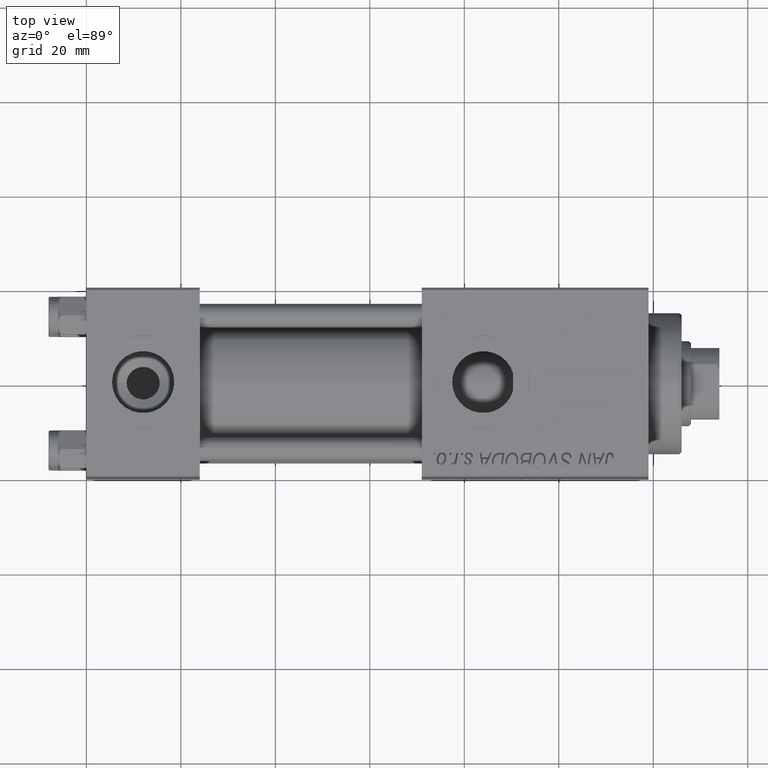
[diagram: clean part render]
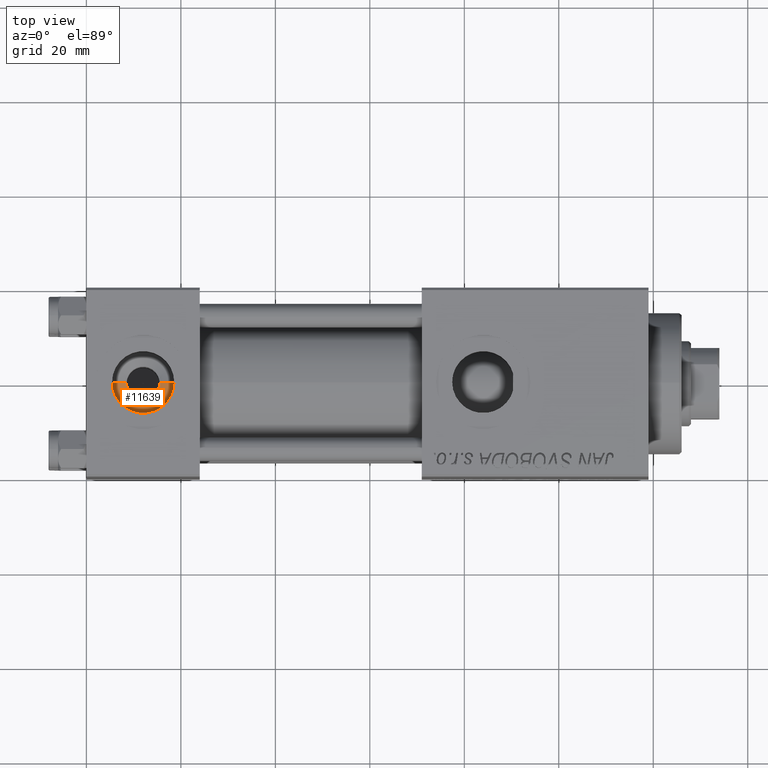
[diagram: same view with one face highlighted and labeled with its STEP entity id]
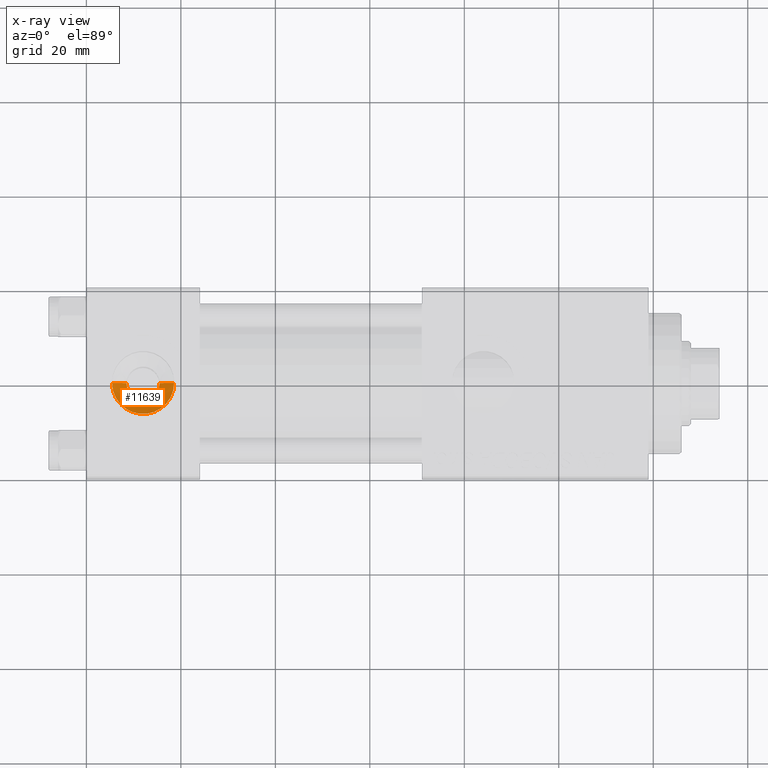
[diagram: x-ray of the same camera — body ghosted, the highlighted face saturated]
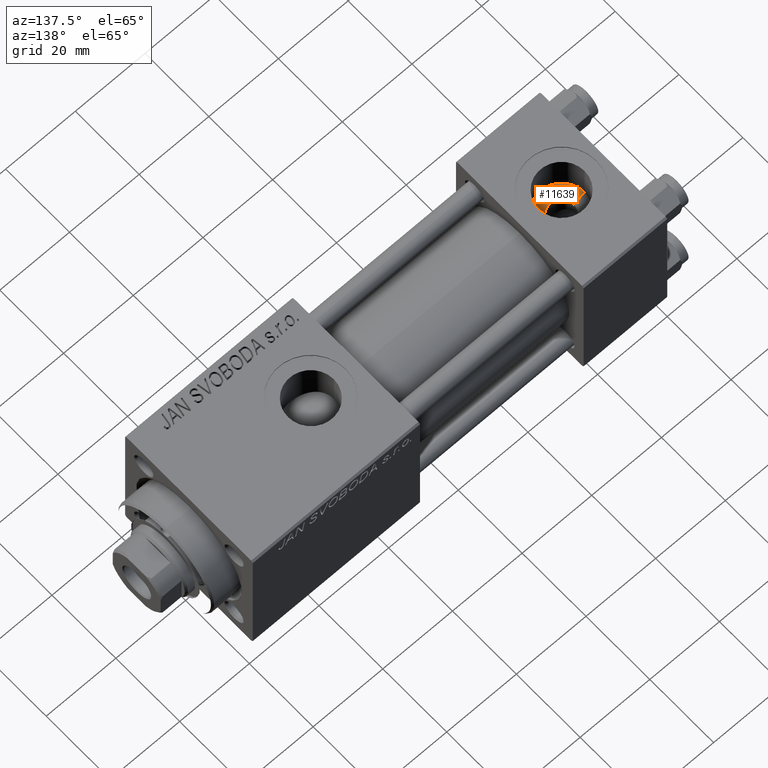
[diagram: same view with one face highlighted and labeled with its STEP entity id]
A machine part, top view. The second image highlights one B-rep face of the part: STEP entity #11639.
The next image is the same camera in x-ray: the body ghosted, the highlighted face saturated — about 0% of this face is hidden behind the body in this view.
A second angle (auxiliary view) of the same face is appended — the face is thin or edge-on in the first view.
In plain terms, the highlighted conical surface has half-angle 60.452 deg.
Its self-contained STEP definition (entity closure, byte-faithful):
#1520 = FACE_OUTER_BOUND ( 'NONE', #33400, .T. ) ;
#3459 = VECTOR ( 'NONE', #46265, 1000.000000000000000 ) ;
#6336 = CARTESIAN_POINT ( 'NONE',  ( 8.500000000000000000, 4.286263797015751879E-16, 7.419999999999996376 ) ) ;
#6413 = CIRCLE ( 'NONE', #18149, 6.579999999999999183 ) ;
#6775 = EDGE_CURVE ( 'NONE', #44434, #41379, #15894, .T. ) ;
#7439 = ORIENTED_EDGE ( 'NONE', *, *, #36011, .F. ) ;
#10530 = CARTESIAN_POINT ( 'NONE',  ( 15.50000000000000000, 1.540743955509788682E-30, 7.419999999999996376 ) ) ;
#11544 = CARTESIAN_POINT ( 'NONE',  ( 18.57999999999999829, 1.540743955509788682E-30, 9.165987261146492315 ) ) ;
#11639 = ADVANCED_FACE ( 'NONE', ( #1520 ), #49978, .F. ) ;
#12151 = CARTESIAN_POINT ( 'NONE',  ( 12.00000000000000000, 1.540743955509788682E-30, 9.165987261146492315 ) ) ;
#13577 = EDGE_CURVE ( 'NONE', #41379, #25045, #6413, .T. ) ;
#14214 = LINE ( 'NONE', #6336, #3459 ) ;
#14870 = CARTESIAN_POINT ( 'NONE',  ( 8.500000000000000000, 4.286263797015752865E-16, 7.419999999999996376 ) ) ;
#15076 = ORIENTED_EDGE ( 'NONE', *, *, #6775, .F. ) ;
#15894 = LINE ( 'NONE', #27721, #28130 ) ;
#17285 = DIRECTION ( 'NONE',  ( 0.000000000000000000, 0.000000000000000000, 1.000000000000000000 ) ) ;
#18149 = AXIS2_PLACEMENT_3D ( 'NONE', #12151, #43941, #43688 ) ;
#23061 = CARTESIAN_POINT ( 'NONE',  ( 12.00000000000000000, 1.540743955509788682E-30, 7.419999999999996376 ) ) ;
#23784 = DIRECTION ( 'NONE',  ( 0.8699429503561852961, 0.000000000000000000, 0.4931523731318503412 ) ) ;
#25045 = VERTEX_POINT ( 'NONE', #38485 ) ;
#25764 = DIRECTION ( 'NONE',  ( 0.000000000000000000, 0.000000000000000000, 1.000000000000000000 ) ) ;
#27721 = CARTESIAN_POINT ( 'NONE',  ( 15.50000000000000000, 1.540743955509788682E-30, 7.419999999999996376 ) ) ;
#28130 = VECTOR ( 'NONE', #23784, 1000.000000000000000 ) ;
#31214 = DIRECTION ( 'NONE',  ( 1.000000000000000000, 0.000000000000000000, 0.000000000000000000 ) ) ;
#32464 = ORIENTED_EDGE ( 'NONE', *, *, #51496, .T. ) ;
#33400 = EDGE_LOOP ( 'NONE', ( #7439, #32464, #35507, #15076 ) ) ;
#35507 = ORIENTED_EDGE ( 'NONE', *, *, #13577, .F. ) ;
#36011 = EDGE_CURVE ( 'NONE', #49729, #44434, #47806, .T. ) ;
#38485 = CARTESIAN_POINT ( 'NONE',  ( 5.420000000000000817, 8.058175938389596335E-16, 9.165987261146492315 ) ) ;
#39064 = AXIS2_PLACEMENT_3D ( 'NONE', #41969, #17285, #48814 ) ;
#39409 = AXIS2_PLACEMENT_3D ( 'NONE', #23061, #25764, #31214 ) ;
#41379 = VERTEX_POINT ( 'NONE', #11544 ) ;
#41969 = CARTESIAN_POINT ( 'NONE',  ( 12.00000000000000000, 1.540743955509788682E-30, 7.419999999999996376 ) ) ;
#43688 = DIRECTION ( 'NONE',  ( 1.000000000000000000, 0.000000000000000000, 0.000000000000000000 ) ) ;
#43941 = DIRECTION ( 'NONE',  ( -0.000000000000000000, -0.000000000000000000, -1.000000000000000000 ) ) ;
#44434 = VERTEX_POINT ( 'NONE', #10530 ) ;
#46265 = DIRECTION ( 'NONE',  ( -0.8699429503561852961, 1.065372849594507103E-16, 0.4931523731318503412 ) ) ;
#47806 = CIRCLE ( 'NONE', #39409, 3.499999999999999556 ) ;
#48814 = DIRECTION ( 'NONE',  ( 1.000000000000000000, 0.000000000000000000, 0.000000000000000000 ) ) ;
#49729 = VERTEX_POINT ( 'NONE', #14870 ) ;
#49978 = CONICAL_SURFACE ( 'NONE', #39064, 3.499999999999999556, 1.055086625138361267 ) ;
#51496 = EDGE_CURVE ( 'NONE', #49729, #25045, #14214, .T. ) ;